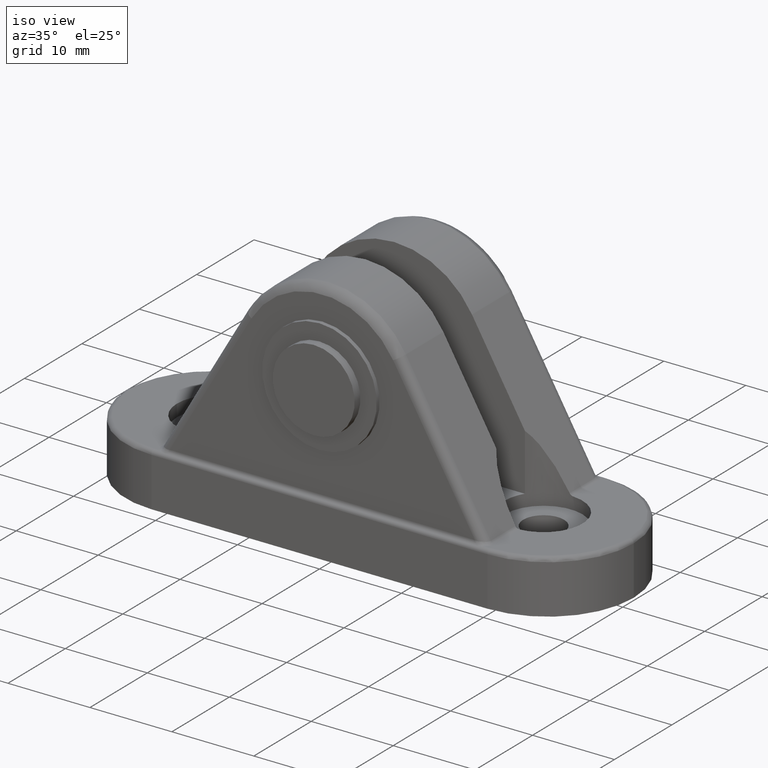
[diagram: clean part render]
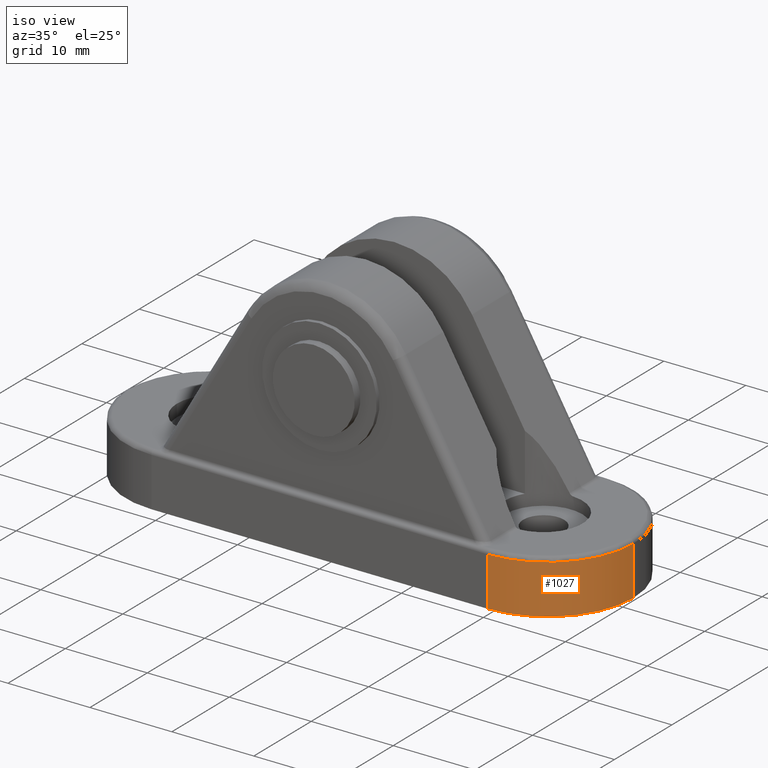
[diagram: same view with one face highlighted and labeled with its STEP entity id]
A machine part, iso view. The second image highlights one B-rep face of the part: STEP entity #1027.
In plain terms, the highlighted cylindrical surface (partial cylindrical patch) has radius 10.5 mm, axis along (0, 0, 1).
Its self-contained STEP definition (entity closure, byte-faithful):
#112=CARTESIAN_POINT('',(31.0,10.500000000000000,-2.842171E-014));
#113=VERTEX_POINT('',#112);
#121=CARTESIAN_POINT('',(20.500000000000000,0.0,0.0));
#122=VERTEX_POINT('',#121);
#123=CARTESIAN_POINT('',(20.500000000000000,10.500000000000000,0.0));
#124=DIRECTION('',(2.186285E-015,6.123234E-017,1.0));
#125=DIRECTION('',(0.0,-1.0,6.123234E-017));
#126=AXIS2_PLACEMENT_3D('',#123,#124,#125);
#127=CIRCLE('',#126,10.500000000000000);
#128=EDGE_CURVE('',#122,#113,#127,.T.);
#984=CARTESIAN_POINT('',(31.000000000000014,10.500000000000000,5.999999999999957));
#985=VERTEX_POINT('',#984);
#993=CARTESIAN_POINT('',(31.0,10.500000000000000,-2.842171E-014));
#994=DIRECTION('',(0.0,0.0,1.0));
#995=VECTOR('',#994,5.999999999999986);
#996=LINE('',#993,#995);
#997=EDGE_CURVE('',#113,#985,#996,.T.);
#1003=CARTESIAN_POINT('',(20.500000000000000,10.500000000000000,0.0));
#1004=DIRECTION('',(2.186285E-015,6.123234E-017,1.0));
#1005=DIRECTION('',(0.0,-1.0,6.123234E-017));
#1006=AXIS2_PLACEMENT_3D('',#1003,#1004,#1005);
#1007=CYLINDRICAL_SURFACE('',#1006,10.500000000000000);
#1008=ORIENTED_EDGE('',*,*,#128,.T.);
#1009=ORIENTED_EDGE('',*,*,#997,.T.);
#1010=CARTESIAN_POINT('',(20.500000000000014,0.0,5.999999999999986));
#1011=VERTEX_POINT('',#1010);
#1012=CARTESIAN_POINT('',(20.500000000000014,10.500000000000000,5.999999999999986));
#1013=DIRECTION('',(2.186285E-015,6.123234E-017,1.0));
#1014=DIRECTION('',(0.0,-1.0,6.123234E-017));
#1015=AXIS2_PLACEMENT_3D('',#1012,#1013,#1014);
#1016=CIRCLE('',#1015,10.500000000000000);
#1017=EDGE_CURVE('',#1011,#985,#1016,.T.);
#1018=ORIENTED_EDGE('',*,*,#1017,.F.);
#1019=CARTESIAN_POINT('',(20.500000000000000,0.0,0.0));
#1020=DIRECTION('',(0.0,0.0,1.0));
#1021=VECTOR('',#1020,5.999999999999986);
#1022=LINE('',#1019,#1021);
#1023=EDGE_CURVE('',#122,#1011,#1022,.T.);
#1024=ORIENTED_EDGE('',*,*,#1023,.F.);
#1025=EDGE_LOOP('',(#1008,#1009,#1018,#1024));
#1026=FACE_OUTER_BOUND('',#1025,.T.);
#1027=ADVANCED_FACE('',(#1026),#1007,.T.);